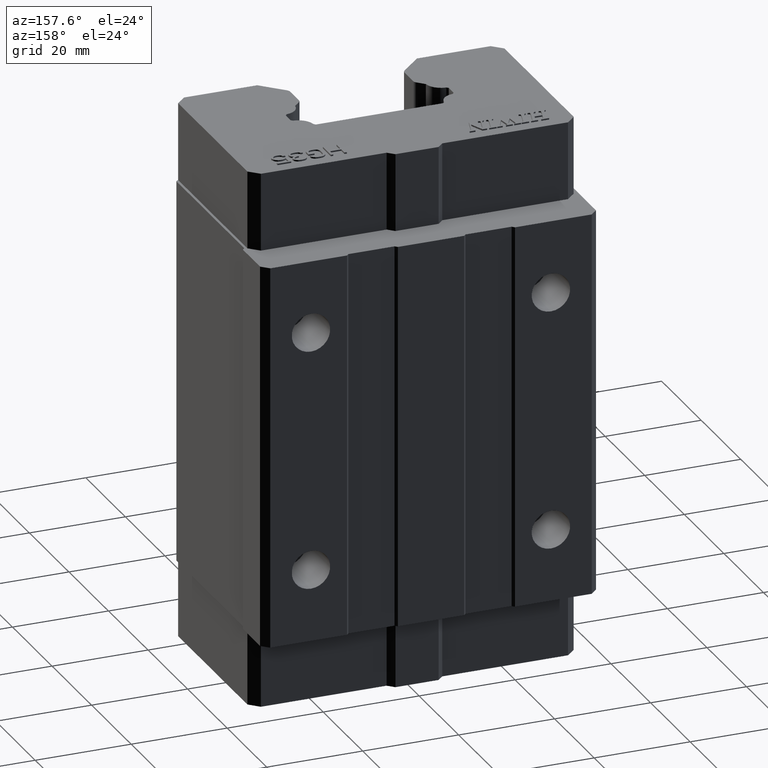
[diagram: clean part render]
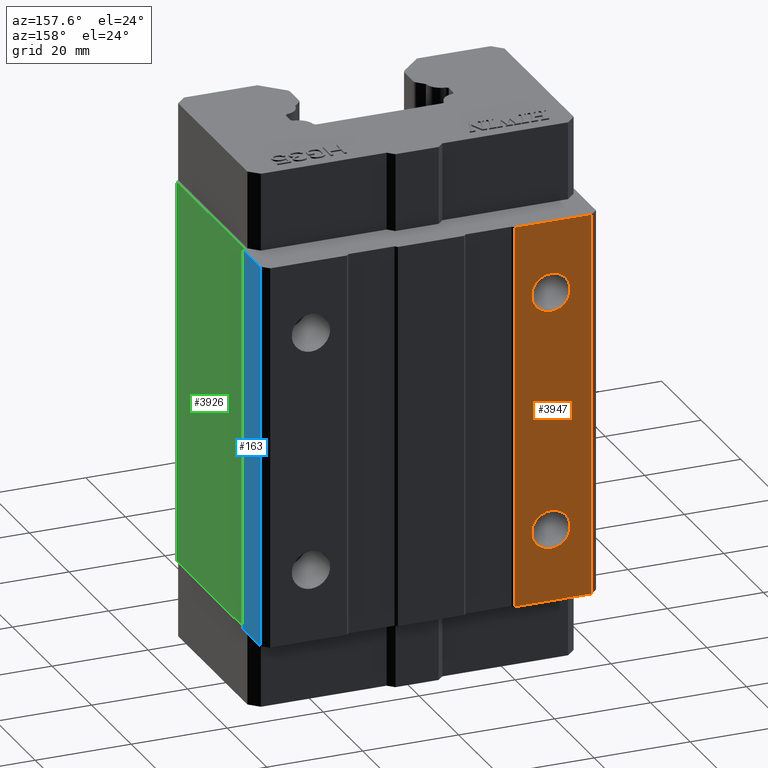
[diagram: same view with three faces highlighted in distinct colors, each labeled with its STEP entity id]
A machine part, auxiliary view with three faces highlighted in distinct colors.
Their STEP definitions:

[orange] entity #3947 — the highlighted planar face has unit normal (0, 1, 0).
#150 = EDGE_CURVE ( 'NONE', #13212, #13209, #5691, .T. ) ;
#176 = VERTEX_POINT ( 'NONE', #5771 ) ;
#178 = EDGE_CURVE ( 'NONE', #179, #176, #5770, .T. ) ;
#179 = VERTEX_POINT ( 'NONE', #5766 ) ;
#189 = EDGE_CURVE ( 'NONE', #13223, #5524, #5750, .T. ) ;
#3371 = ORIENTED_EDGE ( 'NONE', *, *, #150, .T. ) ;
#3384 = ORIENTED_EDGE ( 'NONE', *, *, #3387, .F. ) ;
#3387 = EDGE_CURVE ( 'NONE', #179, #3393, #11867, .T. ) ;
#3391 = ORIENTED_EDGE ( 'NONE', *, *, #3395, .F. ) ;
#3393 = VERTEX_POINT ( 'NONE', #11687 ) ;
#3395 = EDGE_CURVE ( 'NONE', #3393, #3961, #11451, .T. ) ;
#3396 = ORIENTED_EDGE ( 'NONE', *, *, #3397, .T. ) ;
#3397 = EDGE_CURVE ( 'NONE', #176, #3961, #11925, .T. ) ;
#3402 = ORIENTED_EDGE ( 'NONE', *, *, #5531, .T. ) ;
#3405 = EDGE_LOOP ( 'NONE', ( #3402, #3949 ) ) ;
#3947 = ADVANCED_FACE ( 'NONE', ( #12615, #12614, #12613 ), #12612, .T. ) ;
#3948 = EDGE_LOOP ( 'NONE', ( #3950, #3371 ) ) ;
#3949 = ORIENTED_EDGE ( 'NONE', *, *, #189, .T. ) ;
#3950 = ORIENTED_EDGE ( 'NONE', *, *, #13210, .T. ) ;
#3956 = EDGE_LOOP ( 'NONE', ( #3960, #3396, #3391, #3384 ) ) ;
#3960 = ORIENTED_EDGE ( 'NONE', *, *, #178, .T. ) ;
#3961 = VERTEX_POINT ( 'NONE', #12655 ) ;
#4330 = CIRCLE ( 'NONE', #4335, 4.000000000000000000 ) ;
#4335 = AXIS2_PLACEMENT_3D ( 'NONE', #4391, #4390, #4389 ) ;
#4338 = CARTESIAN_POINT ( 'NONE',  ( -25.00000000000000000, 26.00000000000000400, 29.00000000000000000 ) ) ;
#4389 = DIRECTION ( 'NONE',  ( 0.0000000000000000000, 0.0000000000000000000, 1.000000000000000000 ) ) ;
#4390 = DIRECTION ( 'NONE',  ( 0.0000000000000000000, -1.000000000000000000, 0.0000000000000000000 ) ) ;
#4391 = CARTESIAN_POINT ( 'NONE',  ( -25.00000000000000000, 26.00000000000000400, 25.00000000000000000 ) ) ;
#5095 = CARTESIAN_POINT ( 'NONE',  ( -25.00000000000000000, 26.00000000000000400, -29.00000000000000000 ) ) ;
#5100 = DIRECTION ( 'NONE',  ( 0.0000000000000000000, 0.0000000000000000000, 1.000000000000000000 ) ) ;
#5101 = DIRECTION ( 'NONE',  ( 0.0000000000000000000, -1.000000000000000000, 0.0000000000000000000 ) ) ;
#5102 = CARTESIAN_POINT ( 'NONE',  ( -25.00000000000000000, 26.00000000000000400, -25.00000000000000000 ) ) ;
#5103 = AXIS2_PLACEMENT_3D ( 'NONE', #5102, #5101, #5100 ) ;
#5104 = CIRCLE ( 'NONE', #5103, 4.000000000000000000 ) ;
#5105 = CARTESIAN_POINT ( 'NONE',  ( -25.00000000000000000, 26.00000000000000400, -21.00000000000000000 ) ) ;
#5136 = CARTESIAN_POINT ( 'NONE',  ( -25.00000000000000000, 26.00000000000000400, 21.00000000000000000 ) ) ;
#5524 = VERTEX_POINT ( 'NONE', #4338 ) ;
#5531 = EDGE_CURVE ( 'NONE', #5524, #13223, #4330, .T. ) ;
#5687 = DIRECTION ( 'NONE',  ( 0.0000000000000000000, 0.0000000000000000000, 1.000000000000000000 ) ) ;
#5688 = DIRECTION ( 'NONE',  ( 0.0000000000000000000, -1.000000000000000000, 0.0000000000000000000 ) ) ;
#5689 = CARTESIAN_POINT ( 'NONE',  ( -25.00000000000000000, 26.00000000000000400, -25.00000000000000000 ) ) ;
#5690 = AXIS2_PLACEMENT_3D ( 'NONE', #5689, #5688, #5687 ) ;
#5691 = CIRCLE ( 'NONE', #5690, 4.000000000000000000 ) ;
#5746 = DIRECTION ( 'NONE',  ( 0.0000000000000000000, 0.0000000000000000000, 1.000000000000000000 ) ) ;
#5747 = DIRECTION ( 'NONE',  ( 0.0000000000000000000, -1.000000000000000000, 0.0000000000000000000 ) ) ;
#5748 = CARTESIAN_POINT ( 'NONE',  ( -25.00000000000000000, 26.00000000000000400, 25.00000000000000000 ) ) ;
#5749 = AXIS2_PLACEMENT_3D ( 'NONE', #5748, #5747, #5746 ) ;
#5750 = CIRCLE ( 'NONE', #5749, 4.000000000000000000 ) ;
#5766 = CARTESIAN_POINT ( 'NONE',  ( -17.49999999999998600, 26.00000000000002100, 40.00000000000000000 ) ) ;
#5767 = DIRECTION ( 'NONE',  ( 0.0000000000000000000, 0.0000000000000000000, -1.000000000000000000 ) ) ;
#5768 = VECTOR ( 'NONE', #5767, 1000.000000000000000 ) ;
#5769 = CARTESIAN_POINT ( 'NONE',  ( -17.50000000000000000, 26.00000000000000400, -40.00000000000000000 ) ) ;
#5770 = LINE ( 'NONE', #5769, #5768 ) ;
#5771 = CARTESIAN_POINT ( 'NONE',  ( -17.49999999999998600, 26.00000000000002100, -40.00000000000000000 ) ) ;
#11445 = CARTESIAN_POINT ( 'NONE',  ( -33.50000000000000000, 26.00000000000000400, -40.00000000000000000 ) ) ;
#11451 = LINE ( 'NONE', #11445, #11868 ) ;
#11687 = CARTESIAN_POINT ( 'NONE',  ( -33.50000000000000000, 26.00000000000000400, 40.00000000000000700 ) ) ;
#11863 = DIRECTION ( 'NONE',  ( 0.0000000000000000000, 0.0000000000000000000, -1.000000000000000000 ) ) ;
#11864 = DIRECTION ( 'NONE',  ( -1.000000000000000000, 0.0000000000000000000, 0.0000000000000000000 ) ) ;
#11865 = VECTOR ( 'NONE', #11864, 1000.000000000000000 ) ;
#11866 = CARTESIAN_POINT ( 'NONE',  ( 0.0000000000000000000, 26.00000000000000400, 40.00000000000000000 ) ) ;
#11867 = LINE ( 'NONE', #11866, #11865 ) ;
#11868 = VECTOR ( 'NONE', #11863, 1000.000000000000000 ) ;
#11922 = DIRECTION ( 'NONE',  ( -1.000000000000000000, 0.0000000000000000000, 0.0000000000000000000 ) ) ;
#11923 = VECTOR ( 'NONE', #11922, 1000.000000000000000 ) ;
#11924 = CARTESIAN_POINT ( 'NONE',  ( 0.0000000000000000000, 26.00000000000000400, -40.00000000000000000 ) ) ;
#11925 = LINE ( 'NONE', #11924, #11923 ) ;
#12608 = DIRECTION ( 'NONE',  ( 0.0000000000000000000, 0.0000000000000000000, 1.000000000000000000 ) ) ;
#12609 = DIRECTION ( 'NONE',  ( 0.0000000000000000000, 1.000000000000000000, 0.0000000000000000000 ) ) ;
#12610 = CARTESIAN_POINT ( 'NONE',  ( -17.50000000000000000, 26.00000000000000400, -40.00000000000000000 ) ) ;
#12611 = AXIS2_PLACEMENT_3D ( 'NONE', #12610, #12609, #12608 ) ;
#12612 = PLANE ( 'NONE',  #12611 ) ;
#12613 = FACE_OUTER_BOUND ( 'NONE', #3956, .T. ) ;
#12614 = FACE_BOUND ( 'NONE', #3405, .T. ) ;
#12615 = FACE_BOUND ( 'NONE', #3948, .T. ) ;
#12655 = CARTESIAN_POINT ( 'NONE',  ( -33.50000000000000000, 26.00000000000000400, -40.00000000000000000 ) ) ;
#13209 = VERTEX_POINT ( 'NONE', #5105 ) ;
#13210 = EDGE_CURVE ( 'NONE', #13209, #13212, #5104, .T. ) ;
#13212 = VERTEX_POINT ( 'NONE', #5095 ) ;
#13223 = VERTEX_POINT ( 'NONE', #5136 ) ;

[blue] entity #163 — the highlighted planar face has unit normal (1, 0, 0).
#140 = VERTEX_POINT ( 'NONE', #5707 ) ;
#142 = EDGE_CURVE ( 'NONE', #143, #140, #5706, .T. ) ;
#143 = VERTEX_POINT ( 'NONE', #5702 ) ;
#144 = EDGE_CURVE ( 'NONE', #140, #145, #5701, .T. ) ;
#145 = VERTEX_POINT ( 'NONE', #5697 ) ;
#146 = ORIENTED_EDGE ( 'NONE', *, *, #147, .F. ) ;
#147 = EDGE_CURVE ( 'NONE', #148, #145, #5696, .T. ) ;
#148 = VERTEX_POINT ( 'NONE', #5692 ) ;
#163 = ADVANCED_FACE ( 'NONE', ( #5727 ), #5726, .T. ) ;
#164 = EDGE_LOOP ( 'NONE', ( #165, #166, #146, #228 ) ) ;
#165 = ORIENTED_EDGE ( 'NONE', *, *, #142, .T. ) ;
#166 = ORIENTED_EDGE ( 'NONE', *, *, #144, .T. ) ;
#228 = ORIENTED_EDGE ( 'NONE', *, *, #229, .F. ) ;
#229 = EDGE_CURVE ( 'NONE', #143, #148, #5874, .T. ) ;
#5692 = CARTESIAN_POINT ( 'NONE',  ( 35.00000000000000000, 24.50000000000000400, 40.00000000000000000 ) ) ;
#5693 = DIRECTION ( 'NONE',  ( 0.0000000000000000000, 0.0000000000000000000, -1.000000000000000000 ) ) ;
#5694 = VECTOR ( 'NONE', #5693, 1000.000000000000000 ) ;
#5695 = CARTESIAN_POINT ( 'NONE',  ( 35.00000000000000000, 24.50000000000000000, -40.00000000000000000 ) ) ;
#5696 = LINE ( 'NONE', #5695, #5694 ) ;
#5697 = CARTESIAN_POINT ( 'NONE',  ( 35.00000000000000000, 24.50000000000000400, -40.00000000000000000 ) ) ;
#5698 = DIRECTION ( 'NONE',  ( 0.0000000000000000000, 1.000000000000000000, 0.0000000000000000000 ) ) ;
#5699 = VECTOR ( 'NONE', #5698, 1000.000000000000000 ) ;
#5700 = CARTESIAN_POINT ( 'NONE',  ( 35.00000000000000000, 0.0000000000000000000, -40.00000000000000000 ) ) ;
#5701 = LINE ( 'NONE', #5700, #5699 ) ;
#5702 = CARTESIAN_POINT ( 'NONE',  ( 34.99999999999999300, 15.79999999824001700, 40.00000000000000000 ) ) ;
#5703 = DIRECTION ( 'NONE',  ( 0.0000000000000000000, 0.0000000000000000000, -1.000000000000000000 ) ) ;
#5704 = VECTOR ( 'NONE', #5703, 1000.000000000000000 ) ;
#5705 = CARTESIAN_POINT ( 'NONE',  ( 35.00000000000000000, 15.79999999824000100, -40.00000000000000000 ) ) ;
#5706 = LINE ( 'NONE', #5705, #5704 ) ;
#5707 = CARTESIAN_POINT ( 'NONE',  ( 34.99999999999999300, 15.79999999824001700, -40.00000000000000000 ) ) ;
#5722 = DIRECTION ( 'NONE',  ( 0.0000000000000000000, 0.0000000000000000000, -1.000000000000000000 ) ) ;
#5723 = DIRECTION ( 'NONE',  ( 1.000000000000000000, 0.0000000000000000000, 0.0000000000000000000 ) ) ;
#5724 = CARTESIAN_POINT ( 'NONE',  ( 35.00000000000000000, 15.79999999824000100, -40.00000000000000000 ) ) ;
#5725 = AXIS2_PLACEMENT_3D ( 'NONE', #5724, #5723, #5722 ) ;
#5726 = PLANE ( 'NONE',  #5725 ) ;
#5727 = FACE_OUTER_BOUND ( 'NONE', #164, .T. ) ;
#5871 = DIRECTION ( 'NONE',  ( 0.0000000000000000000, 1.000000000000000000, 0.0000000000000000000 ) ) ;
#5872 = VECTOR ( 'NONE', #5871, 1000.000000000000000 ) ;
#5873 = CARTESIAN_POINT ( 'NONE',  ( 35.00000000000000000, 0.0000000000000000000, 40.00000000000000000 ) ) ;
#5874 = LINE ( 'NONE', #5873, #5872 ) ;

[green] entity #3926 — the highlighted planar face has unit normal (1, 0, 0).
#137 = VERTEX_POINT ( 'NONE', #5647 ) ;
#154 = EDGE_CURVE ( 'NONE', #155, #137, #5680, .T. ) ;
#155 = VERTEX_POINT ( 'NONE', #5741 ) ;
#3441 = VERTEX_POINT ( 'NONE', #11978 ) ;
#3442 = EDGE_CURVE ( 'NONE', #3449, #155, #11977, .T. ) ;
#3443 = ORIENTED_EDGE ( 'NONE', *, *, #3442, .T. ) ;
#3444 = ORIENTED_EDGE ( 'NONE', *, *, #154, .T. ) ;
#3446 = EDGE_CURVE ( 'NONE', #3441, #137, #11973, .T. ) ;
#3447 = ORIENTED_EDGE ( 'NONE', *, *, #3446, .F. ) ;
#3449 = VERTEX_POINT ( 'NONE', #11969 ) ;
#3923 = EDGE_CURVE ( 'NONE', #3449, #3441, #12595, .T. ) ;
#3924 = EDGE_LOOP ( 'NONE', ( #3925, #3443, #3444, #3447 ) ) ;
#3925 = ORIENTED_EDGE ( 'NONE', *, *, #3923, .F. ) ;
#3926 = ADVANCED_FACE ( 'NONE', ( #12591 ), #12590, .T. ) ;
#5647 = CARTESIAN_POINT ( 'NONE',  ( 34.50000000000000000, 15.29999999824000200, 40.00000000000000000 ) ) ;
#5679 = CARTESIAN_POINT ( 'NONE',  ( 34.50000000000000000, 15.29999999824000200, -40.00000000000000000 ) ) ;
#5680 = LINE ( 'NONE', #5679, #5743 ) ;
#5741 = CARTESIAN_POINT ( 'NONE',  ( 34.50000000000000000, 15.29999999824000200, -40.00000000000000000 ) ) ;
#5742 = DIRECTION ( 'NONE',  ( 0.0000000000000000000, 0.0000000000000000000, 1.000000000000000000 ) ) ;
#5743 = VECTOR ( 'NONE', #5742, 1000.000000000000000 ) ;
#11969 = CARTESIAN_POINT ( 'NONE',  ( 34.50000000000000000, -18.99999999999999600, -40.00000000000000000 ) ) ;
#11970 = DIRECTION ( 'NONE',  ( 0.0000000000000000000, 1.000000000000000000, 0.0000000000000000000 ) ) ;
#11971 = VECTOR ( 'NONE', #11970, 1000.000000000000000 ) ;
#11972 = CARTESIAN_POINT ( 'NONE',  ( 34.50000000000000000, 0.0000000000000000000, 40.00000000000000000 ) ) ;
#11973 = LINE ( 'NONE', #11972, #11971 ) ;
#11974 = DIRECTION ( 'NONE',  ( 0.0000000000000000000, 1.000000000000000000, 0.0000000000000000000 ) ) ;
#11975 = VECTOR ( 'NONE', #11974, 1000.000000000000000 ) ;
#11976 = CARTESIAN_POINT ( 'NONE',  ( 34.50000000000000000, 0.0000000000000000000, -40.00000000000000000 ) ) ;
#11977 = LINE ( 'NONE', #11976, #11975 ) ;
#11978 = CARTESIAN_POINT ( 'NONE',  ( 34.50000000000000000, -18.99999999999999600, 40.00000000000000700 ) ) ;
#12586 = DIRECTION ( 'NONE',  ( 0.0000000000000000000, 0.0000000000000000000, -1.000000000000000000 ) ) ;
#12587 = DIRECTION ( 'NONE',  ( 1.000000000000000000, 0.0000000000000000000, 0.0000000000000000000 ) ) ;
#12588 = CARTESIAN_POINT ( 'NONE',  ( 34.50000000000000000, -19.00000000000000000, -40.00000000000000000 ) ) ;
#12589 = AXIS2_PLACEMENT_3D ( 'NONE', #12588, #12587, #12586 ) ;
#12590 = PLANE ( 'NONE',  #12589 ) ;
#12591 = FACE_OUTER_BOUND ( 'NONE', #3924, .T. ) ;
#12592 = DIRECTION ( 'NONE',  ( 0.0000000000000000000, 0.0000000000000000000, 1.000000000000000000 ) ) ;
#12593 = VECTOR ( 'NONE', #12592, 1000.000000000000000 ) ;
#12594 = CARTESIAN_POINT ( 'NONE',  ( 34.50000000000000000, -19.00000000000000000, -40.00000000000000000 ) ) ;
#12595 = LINE ( 'NONE', #12594, #12593 ) ;